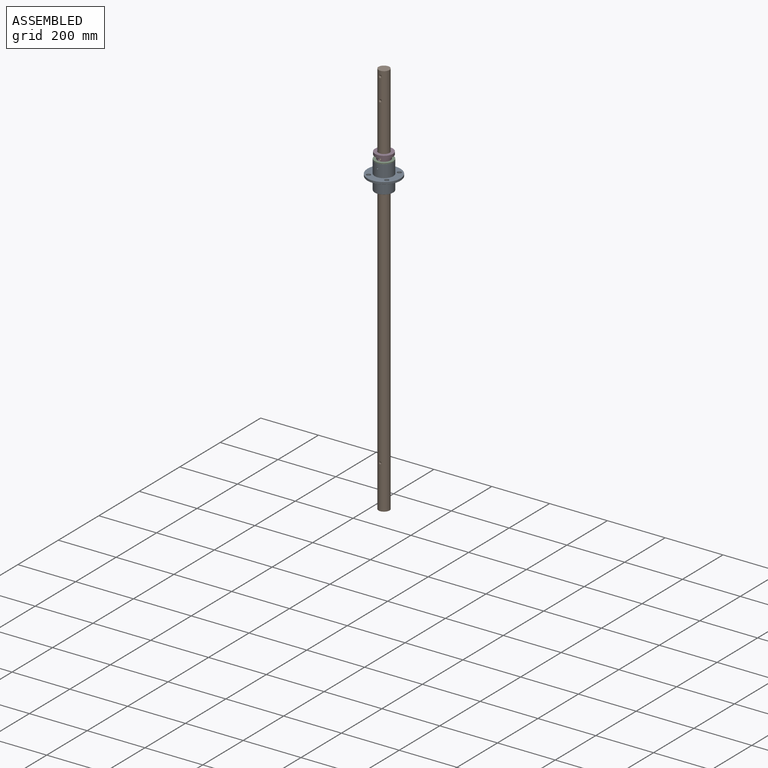
[diagram: assembled view]
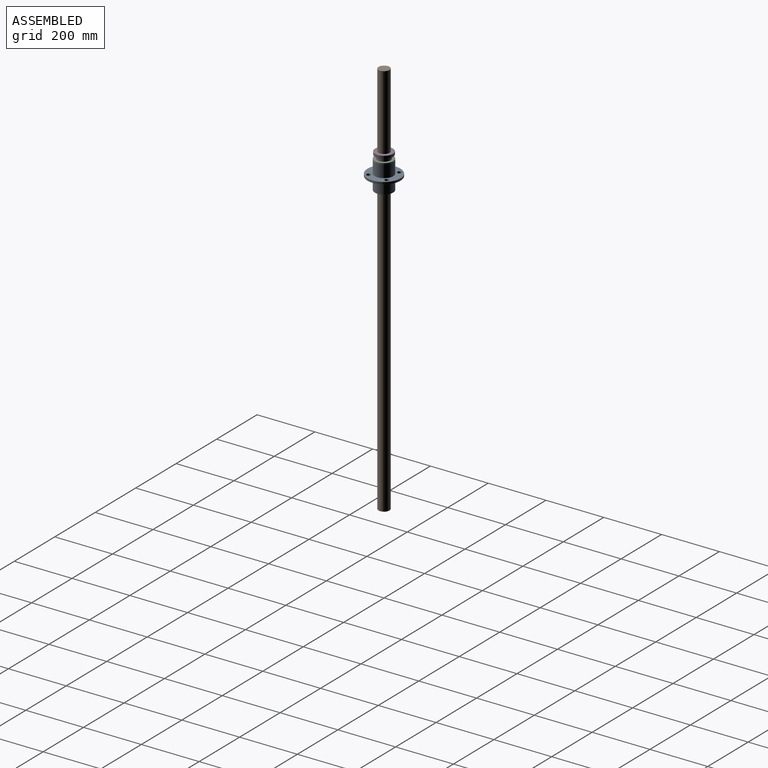
[diagram: assembled view, second angle]
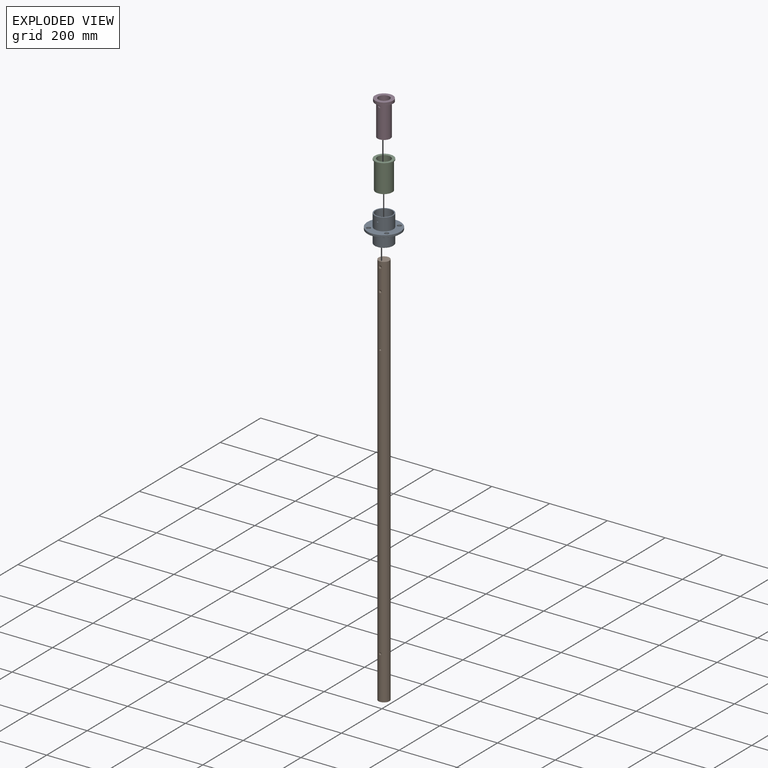
[diagram: exploded view]
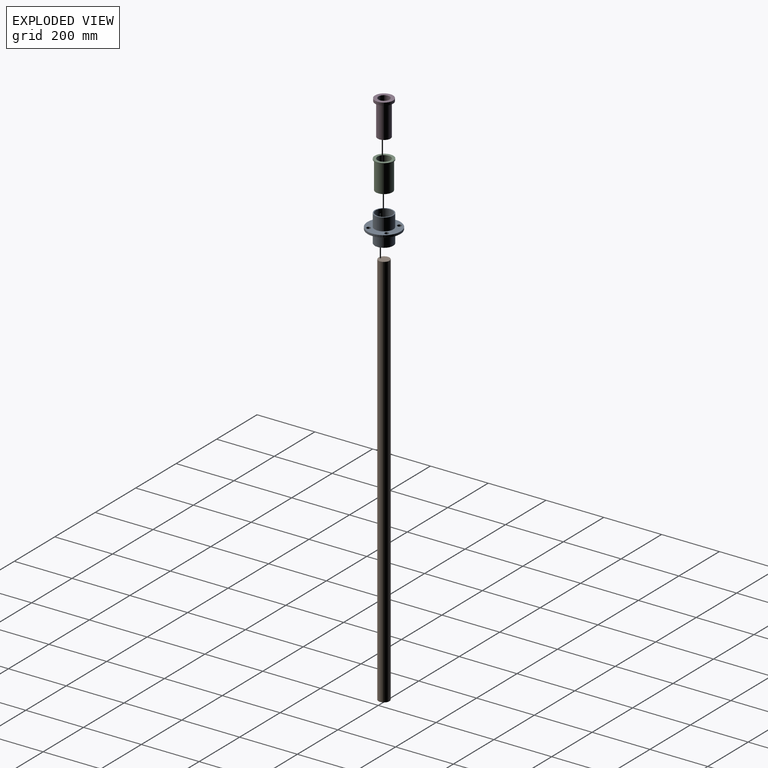
[diagram: exploded view, second angle]
ASSEMBLY  parts=4 mates=3
PART A: 27 faces, bbox 114.3x114.3x95.3 mm
  f0: cylinder r=28.57mm len=94.49mm, axis (0,0,-1), area 16944mm2, adj f20,f25,f26
  f1: cylinder r=32.07mm len=64.14mm, axis (0,0,-1), area 8715.5mm2, adj f3,f24,f26
  f2: cylinder r=57.15mm len=114.3mm, axis (0,0,-1), area 2517.3mm2, adj f22,f23
  f3: plane 113.54x113.54mm, normal (0,0,1), area 6182.4mm2, adj f1,f14,f17,f18,f19,f22
  f4: plane 113.54x113.54mm, normal (0,0,-1), area 6182.4mm2, adj f5,f12,f13,f15,f16,f23
  f5: cylinder r=32.07mm len=64.14mm, axis (0,0,-1), area 8736mm2, adj f4,f21
  f6: plane 63.37x63.37mm, normal (0,0,1), area 520.2mm2, adj f24,f25
  f7: plane 63.37x63.37mm, normal (0,0,-1), area 520.2mm2, adj f20,f21
  f8: cylinder r=7.14mm len=14.29mm, axis (0,0,1), area 314.7mm2, adj f13,f19
  f9: cylinder r=7.14mm len=14.29mm, axis (0,0,1), area 314.7mm2, adj f16,f17
  f10: cylinder r=7.14mm len=14.29mm, axis (0,0,1), area 314.7mm2, adj f12,f18
  f11: cylinder r=7.14mm len=14.29mm, axis (0,0,1), area 314.7mm2, adj f14,f15
  f12: cone r=7.14mm half-angle=45deg, axis (0,0,-1), area 24.8mm2, adj f4,f10
  f13: cone r=7.14mm half-angle=45deg, axis (0,0,-1), area 24.8mm2, adj f4,f8
  f14: cone r=7.14mm half-angle=45deg, axis (0,0,1), area 24.8mm2, adj f3,f11
  f15: cone r=7.14mm half-angle=45deg, axis (0,0,-1), area 24.8mm2, adj f4,f11
  f16: cone r=7.14mm half-angle=45deg, axis (0,0,-1), area 24.8mm2, adj f4,f9
  f17: cone r=7.14mm half-angle=45deg, axis (0,0,1), area 24.8mm2, adj f3,f9
  f18: cone r=7.14mm half-angle=45deg, axis (0,0,1), area 24.8mm2, adj f3,f10
  f19: cone r=7.14mm half-angle=45deg, axis (0,0,1), area 24.8mm2, adj f3,f8
  f20: cone r=28.96mm half-angle=45deg, axis (0,0,-1), area 97.4mm2, adj f0,f7
  f21: cone r=32.07mm half-angle=45deg, axis (0,0,1), area 107.9mm2, adj f5,f7
  f22: cone r=56.77mm half-angle=45deg, axis (0,0,-1), area 192.8mm2, adj f2,f3
  f23: cone r=57.15mm half-angle=45deg, axis (0,0,1), area 192.8mm2, adj f2,f4
  f24: cone r=31.69mm half-angle=45deg, axis (0,0,-1), area 107.9mm2, adj f1,f6
  f25: cone r=28.57mm half-angle=45deg, axis (0,0,1), area 97.4mm2, adj f0,f6
  f26: cylinder r=2.55mm len=5.11mm, axis (0,1,0), area 56.1mm2, adj f0,f1
PART B: 14 faces, bbox 38x38x1378 mm
  f0: cylinder r=19.01mm len=1377.95mm, axis (0,0,1), area 164351.7mm2, adj f1,f2,f3,f4,f5,f6,f7,f8
  f1: plane 38.02x38.02mm, normal (0,0,-1), area 1135.5mm2, adj f0
  f2: plane 38.02x38.02mm, normal (0,0,1), area 1135.5mm2, adj f0
  f3: cylinder r=5.16mm len=7.19mm, axis (0,-1,0), area 1.7mm2, adj f0,f4
  f4: cone r=0mm half-angle=59deg, axis (0,-1,0), area 92.3mm2, adj f0,f3,f5
  f5: cylinder r=5.16mm len=7.19mm, axis (0,-1,0), area 1.7mm2, adj f0,f4
  f6: cylinder r=5.16mm len=7.19mm, axis (0,-1,0), area 1.7mm2, adj f0,f7
  f7: cone r=0mm half-angle=59deg, axis (0,-1,0), area 92.3mm2, adj f0,f6,f8
  f8: cylinder r=5.16mm len=7.19mm, axis (0,-1,0), area 1.7mm2, adj f0,f7
  f9: cone r=0mm half-angle=59deg, axis (0,-1,0), area 39mm2, adj f10
  f10: cylinder r=3.26mm len=18.48mm, axis (0,-1,0), area 376.2mm2, adj f0,f9
  f11: cylinder r=4.37mm len=7.19mm, axis (0,-1,0), area 1.8mm2, adj f0,f12
  f12: cone r=0mm half-angle=59deg, axis (0,-1,0), area 68.4mm2, adj f0,f11,f13
  f13: cylinder r=4.37mm len=7.19mm, axis (0,-1,0), area 1.8mm2, adj f0,f12
PART C: 6 faces, bbox 64.1x64.1x98.4 mm
  f0: cylinder r=32.07mm len=64.14mm, axis (0,0,1), area 639.7mm2, adj f3,f5
  f1: plane 57.1x57.1mm, normal (0,0,-1), area 973.2mm2, adj f2,f4
  f2: cylinder r=22.48mm len=98.43mm, axis (0,0,1), area 13901.5mm2, adj f1,f3
  f3: plane 64.14x64.14mm, normal (0,0,1), area 1643.1mm2, adj f0,f2
  f4: cylinder r=28.55mm len=95.25mm, axis (0,0,-1), area 17086.2mm2, adj f1,f5
  f5: plane 64.14x64.14mm, normal (0,0,-1), area 669.9mm2, adj f0,f4
PART D: 7 faces, bbox 62.1x62.1x121 mm
  f0: cylinder r=19.08mm len=121.03mm, axis (0,0,1), area 14421.7mm2, adj f3,f4,f6
  f1: cylinder r=22.42mm len=111.4mm, axis (0,0,-1), area 15606.6mm2, adj f3,f5,f6
  f2: cylinder r=31.05mm len=62.1mm, axis (0,0,1), area 1878.2mm2, adj f4,f5
  f3: plane 44.83x44.83mm, normal (0,0,-1), area 435.4mm2, adj f0,f1
  f4: plane 62.1x62.1mm, normal (0,0,1), area 1886mm2, adj f0,f2
  f5: plane 62.1x62.1mm, normal (0,0,-1), area 1450.6mm2, adj f1,f2
  f6: cylinder r=5.16mm len=10.31mm, axis (0,1,0), area 110mm2, adj f0,f1
PLACE A t=(-4.48,16.76,-332.47)mm
PLACE B t=(-4.48,16.76,0)mm
PLACE C t=(-4.48,16.76,-281.67)mm
PLACE D t=(-4.48,16.76,-259.07)mm
MATE cylindrical B.f0 <-> D.f0  axis (0,0,1) through (-4.48,16.76,0)mm
MATE revolute C.f2 <-> D.f1  axis (0,0,-1) through (-4.48,16.76,-380.1)mm
MATE fastened A.f1 <-> C.f0  axis (0,0,1) through (-4.48,16.76,-284.85)mm
